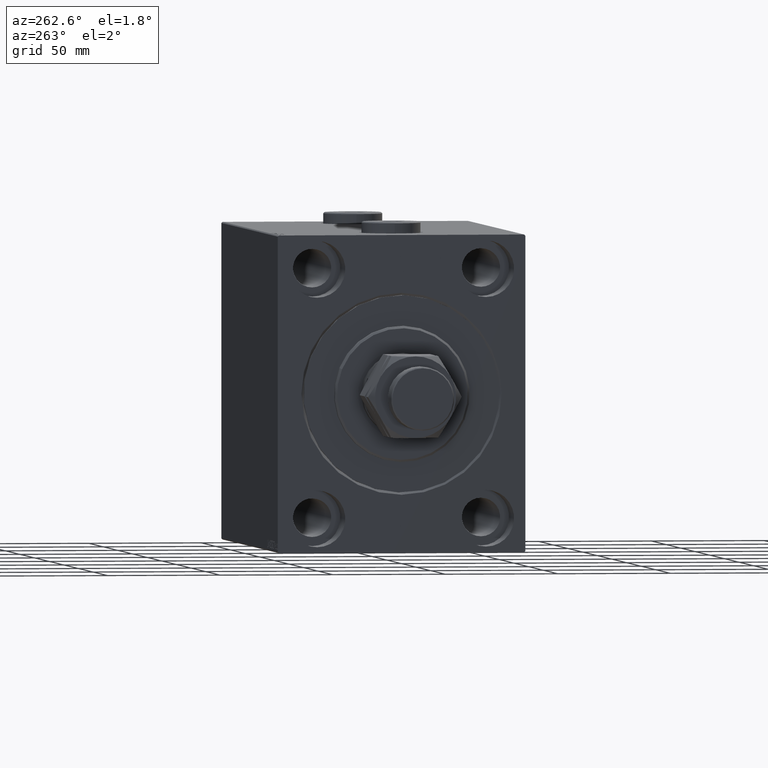
[diagram: clean part render]
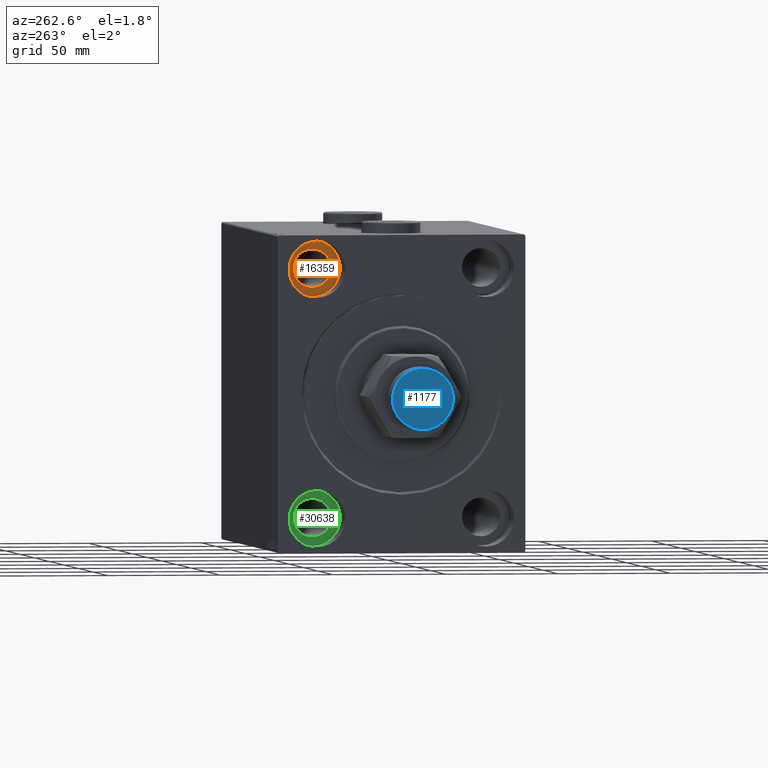
[diagram: same view with three faces highlighted in distinct colors, each labeled with its STEP entity id]
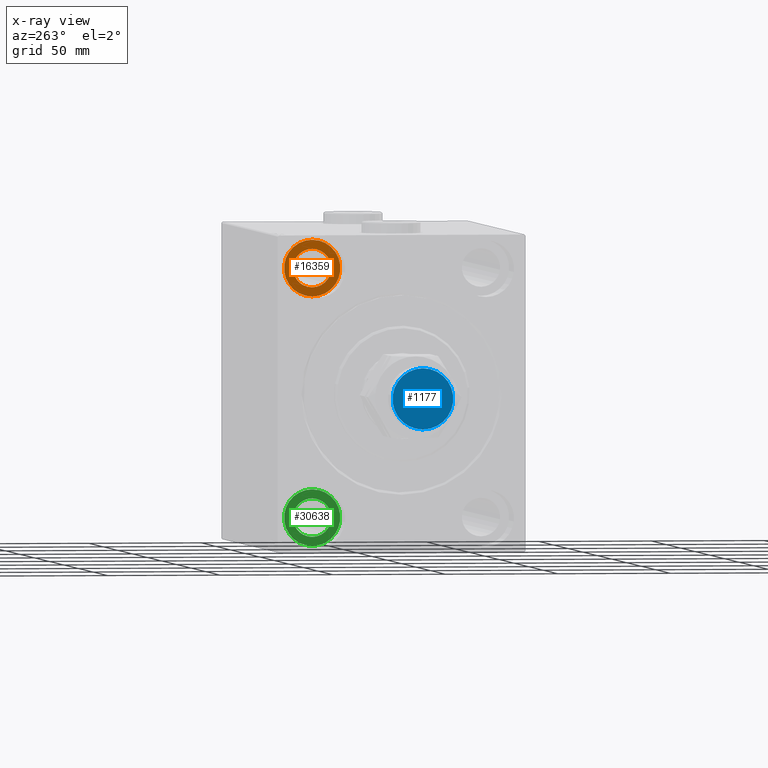
[diagram: x-ray of the same camera — body ghosted, the three highlighted faces saturated]
A machine part, auxiliary view with three faces highlighted in distinct colors.
The next image is the same camera in x-ray (body ghosted, the three faces saturated) — at least one of them is partly hidden behind the body in this view.
Their STEP definitions:

[orange] entity #16359 — the highlighted planar face has unit normal (-1, 0, 0).
#693 = ORIENTED_EDGE ( 'NONE', *, *, #28513, .T. ) ;
#740 = EDGE_CURVE ( 'NONE', #25938, #12405, #42441, .T. ) ;
#2839 = CARTESIAN_POINT ( 'NONE',  ( 17.00000000000001421, 37.50000000000000711, 63.50000000000000000 ) ) ;
#5998 = DIRECTION ( 'NONE',  ( 0.000000000000000000, 0.000000000000000000, 1.000000000000000000 ) ) ;
#6704 = DIRECTION ( 'NONE',  ( 0.000000000000000000, 0.000000000000000000, 1.000000000000000000 ) ) ;
#7000 = AXIS2_PLACEMENT_3D ( 'NONE', #28469, #10396, #45856 ) ;
#10268 = FACE_OUTER_BOUND ( 'NONE', #42018, .T. ) ;
#10396 = DIRECTION ( 'NONE',  ( -1.000000000000000000, 0.000000000000000000, 0.000000000000000000 ) ) ;
#12269 = AXIS2_PLACEMENT_3D ( 'NONE', #34643, #23234, #42040 ) ;
#12405 = VERTEX_POINT ( 'NONE', #30133 ) ;
#13001 = VERTEX_POINT ( 'NONE', #44959 ) ;
#13147 = FACE_BOUND ( 'NONE', #35558, .T. ) ;
#16359 = ADVANCED_FACE ( 'NONE', ( #13147, #10268 ), #28344, .T. ) ;
#16808 = CARTESIAN_POINT ( 'NONE',  ( 17.00000000000000000, 37.50000000000000711, 42.50000000000000711 ) ) ;
#16976 = ORIENTED_EDGE ( 'NONE', *, *, #44388, .F. ) ;
#23234 = DIRECTION ( 'NONE',  ( -1.000000000000000000, 0.000000000000000000, 0.000000000000000000 ) ) ;
#23598 = VERTEX_POINT ( 'NONE', #16808 ) ;
#24787 = ORIENTED_EDGE ( 'NONE', *, *, #740, .F. ) ;
#24883 = AXIS2_PLACEMENT_3D ( 'NONE', #42867, #43804, #6704 ) ;
#25937 = CIRCLE ( 'NONE', #12269, 12.49999999999999645 ) ;
#25938 = VERTEX_POINT ( 'NONE', #2839 ) ;
#28099 = DIRECTION ( 'NONE',  ( -1.000000000000000000, 0.000000000000000000, 0.000000000000000000 ) ) ;
#28344 = PLANE ( 'NONE',  #38261 ) ;
#28469 = CARTESIAN_POINT ( 'NONE',  ( 17.00000000000001421, 37.50000000000000711, 55.00000000000000711 ) ) ;
#28513 = EDGE_CURVE ( 'NONE', #13001, #23598, #32489, .T. ) ;
#30133 = CARTESIAN_POINT ( 'NONE',  ( 17.00000000000001421, 37.50000000000000711, 46.50000000000001421 ) ) ;
#32489 = CIRCLE ( 'NONE', #24883, 12.49999999999999645 ) ;
#34643 = CARTESIAN_POINT ( 'NONE',  ( 17.00000000000000000, 37.50000000000000711, 55.00000000000000711 ) ) ;
#35558 = EDGE_LOOP ( 'NONE', ( #24787, #16976 ) ) ;
#37063 = DIRECTION ( 'NONE',  ( -1.000000000000000000, 0.000000000000000000, 0.000000000000000000 ) ) ;
#38261 = AXIS2_PLACEMENT_3D ( 'NONE', #38590, #28099, #5998 ) ;
#38382 = ORIENTED_EDGE ( 'NONE', *, *, #41353, .T. ) ;
#38590 = CARTESIAN_POINT ( 'NONE',  ( 17.00000000000000000, 0.000000000000000000, 0.000000000000000000 ) ) ;
#39699 = DIRECTION ( 'NONE',  ( 0.000000000000000000, 0.000000000000000000, 1.000000000000000000 ) ) ;
#40459 = CIRCLE ( 'NONE', #7000, 8.499999999999992895 ) ;
#41353 = EDGE_CURVE ( 'NONE', #23598, #13001, #25937, .T. ) ;
#42018 = EDGE_LOOP ( 'NONE', ( #693, #38382 ) ) ;
#42040 = DIRECTION ( 'NONE',  ( 0.000000000000000000, 0.000000000000000000, 1.000000000000000000 ) ) ;
#42441 = CIRCLE ( 'NONE', #43976, 8.499999999999992895 ) ;
#42867 = CARTESIAN_POINT ( 'NONE',  ( 17.00000000000000000, 37.50000000000000711, 55.00000000000000711 ) ) ;
#43804 = DIRECTION ( 'NONE',  ( -1.000000000000000000, 0.000000000000000000, 0.000000000000000000 ) ) ;
#43976 = AXIS2_PLACEMENT_3D ( 'NONE', #47058, #37063, #39699 ) ;
#44388 = EDGE_CURVE ( 'NONE', #12405, #25938, #40459, .T. ) ;
#44959 = CARTESIAN_POINT ( 'NONE',  ( 17.00000000000000000, 37.50000000000000711, 67.50000000000000000 ) ) ;
#45856 = DIRECTION ( 'NONE',  ( 0.000000000000000000, 0.000000000000000000, 1.000000000000000000 ) ) ;
#47058 = CARTESIAN_POINT ( 'NONE',  ( 17.00000000000001421, 37.50000000000000711, 55.00000000000000711 ) ) ;

[blue] entity #1177 — the highlighted planar face has unit normal (-1, 0, 0).
#384 = DIRECTION ( 'NONE',  ( 0.000000000000000000, 0.000000000000000000, 1.000000000000000000 ) ) ;
#1177 = ADVANCED_FACE ( 'NONE', ( #14659 ), #7505, .T. ) ;
#2274 = AXIS2_PLACEMENT_3D ( 'NONE', #4989, #27082, #27561 ) ;
#3999 = DIRECTION ( 'NONE',  ( 0.000000000000000000, 0.000000000000000000, 1.000000000000000000 ) ) ;
#4989 = CARTESIAN_POINT ( 'NONE',  ( 0.000000000000000000, 0.000000000000000000, 59.00000000000000000 ) ) ;
#6778 = EDGE_LOOP ( 'NONE', ( #45226, #14557 ) ) ;
#7505 = PLANE ( 'NONE',  #20378 ) ;
#14443 = CIRCLE ( 'NONE', #2274, 13.50000000000001954 ) ;
#14557 = ORIENTED_EDGE ( 'NONE', *, *, #22695, .T. ) ;
#14659 = FACE_OUTER_BOUND ( 'NONE', #6778, .T. ) ;
#19512 = VERTEX_POINT ( 'NONE', #23377 ) ;
#20378 = AXIS2_PLACEMENT_3D ( 'NONE', #25344, #384, #40340 ) ;
#20950 = AXIS2_PLACEMENT_3D ( 'NONE', #40151, #3999, #43950 ) ;
#22695 = EDGE_CURVE ( 'NONE', #19512, #46417, #36186, .T. ) ;
#23377 = CARTESIAN_POINT ( 'NONE',  ( 13.50000000000001954, 1.683889348827612034E-15, 59.00000000000000000 ) ) ;
#25344 = CARTESIAN_POINT ( 'NONE',  ( 0.000000000000000000, 0.000000000000000000, 59.00000000000000000 ) ) ;
#27082 = DIRECTION ( 'NONE',  ( 0.000000000000000000, 0.000000000000000000, 1.000000000000000000 ) ) ;
#27561 = DIRECTION ( 'NONE',  ( 1.000000000000000000, 0.000000000000000000, 0.000000000000000000 ) ) ;
#33654 = EDGE_CURVE ( 'NONE', #46417, #19512, #14443, .T. ) ;
#36186 = CIRCLE ( 'NONE', #20950, 13.50000000000001954 ) ;
#40151 = CARTESIAN_POINT ( 'NONE',  ( 0.000000000000000000, 0.000000000000000000, 59.00000000000000000 ) ) ;
#40340 = DIRECTION ( 'NONE',  ( 1.000000000000000000, 0.000000000000000000, -0.000000000000000000 ) ) ;
#43950 = DIRECTION ( 'NONE',  ( 1.000000000000000000, 0.000000000000000000, 0.000000000000000000 ) ) ;
#45226 = ORIENTED_EDGE ( 'NONE', *, *, #33654, .T. ) ;
#45802 = CARTESIAN_POINT ( 'NONE',  ( -13.50000000000001954, 0.000000000000000000, 59.00000000000000000 ) ) ;
#46417 = VERTEX_POINT ( 'NONE', #45802 ) ;

[green] entity #30638 — the highlighted planar face has unit normal (-1, 0, 0).
#472 = CARTESIAN_POINT ( 'NONE',  ( 17.00000000000001421, 37.49999999999997868, -46.50000000000000000 ) ) ;
#3255 = DIRECTION ( 'NONE',  ( -1.000000000000000000, 0.000000000000000000, 0.000000000000000000 ) ) ;
#3322 = CARTESIAN_POINT ( 'NONE',  ( 17.00000000000000000, 37.49999999999997868, -54.99999999999999289 ) ) ;
#4721 = CIRCLE ( 'NONE', #16866, 12.49999999999999645 ) ;
#6730 = AXIS2_PLACEMENT_3D ( 'NONE', #46981, #14401, #21752 ) ;
#7549 = VERTEX_POINT ( 'NONE', #46311 ) ;
#8899 = ORIENTED_EDGE ( 'NONE', *, *, #13909, .T. ) ;
#9283 = EDGE_CURVE ( 'NONE', #32556, #37981, #18356, .T. ) ;
#10683 = DIRECTION ( 'NONE',  ( 0.000000000000000000, 0.000000000000000000, 1.000000000000000000 ) ) ;
#10861 = AXIS2_PLACEMENT_3D ( 'NONE', #24875, #3255, #39169 ) ;
#11187 = CARTESIAN_POINT ( 'NONE',  ( 17.00000000000001421, 37.49999999999997868, -63.49999999999998579 ) ) ;
#13493 = AXIS2_PLACEMENT_3D ( 'NONE', #37336, #26368, #34209 ) ;
#13909 = EDGE_CURVE ( 'NONE', #34320, #7549, #4721, .T. ) ;
#14401 = DIRECTION ( 'NONE',  ( -1.000000000000000000, 0.000000000000000000, 0.000000000000000000 ) ) ;
#14871 = FACE_OUTER_BOUND ( 'NONE', #23995, .T. ) ;
#15783 = EDGE_CURVE ( 'NONE', #7549, #34320, #32883, .T. ) ;
#16235 = ORIENTED_EDGE ( 'NONE', *, *, #26995, .F. ) ;
#16615 = CARTESIAN_POINT ( 'NONE',  ( 17.00000000000001421, 37.49999999999997868, -54.99999999999999289 ) ) ;
#16866 = AXIS2_PLACEMENT_3D ( 'NONE', #3322, #28747, #10683 ) ;
#18044 = CIRCLE ( 'NONE', #13493, 8.499999999999992895 ) ;
#18356 = CIRCLE ( 'NONE', #24417, 8.499999999999992895 ) ;
#18439 = CARTESIAN_POINT ( 'NONE',  ( 17.00000000000000000, 37.49999999999997868, -67.49999999999998579 ) ) ;
#19297 = ORIENTED_EDGE ( 'NONE', *, *, #15783, .T. ) ;
#20298 = EDGE_LOOP ( 'NONE', ( #23510, #16235 ) ) ;
#21752 = DIRECTION ( 'NONE',  ( 0.000000000000000000, 0.000000000000000000, 1.000000000000000000 ) ) ;
#23269 = DIRECTION ( 'NONE',  ( 0.000000000000000000, 0.000000000000000000, 1.000000000000000000 ) ) ;
#23510 = ORIENTED_EDGE ( 'NONE', *, *, #9283, .F. ) ;
#23995 = EDGE_LOOP ( 'NONE', ( #19297, #8899 ) ) ;
#24417 = AXIS2_PLACEMENT_3D ( 'NONE', #16615, #42080, #23269 ) ;
#24875 = CARTESIAN_POINT ( 'NONE',  ( 17.00000000000000000, 37.49999999999997868, -54.99999999999999289 ) ) ;
#26368 = DIRECTION ( 'NONE',  ( -1.000000000000000000, 0.000000000000000000, 0.000000000000000000 ) ) ;
#26995 = EDGE_CURVE ( 'NONE', #37981, #32556, #18044, .T. ) ;
#28747 = DIRECTION ( 'NONE',  ( -1.000000000000000000, 0.000000000000000000, 0.000000000000000000 ) ) ;
#29598 = FACE_BOUND ( 'NONE', #20298, .T. ) ;
#30638 = ADVANCED_FACE ( 'NONE', ( #29598, #14871 ), #33159, .T. ) ;
#32556 = VERTEX_POINT ( 'NONE', #472 ) ;
#32883 = CIRCLE ( 'NONE', #10861, 12.49999999999999645 ) ;
#33159 = PLANE ( 'NONE',  #6730 ) ;
#34209 = DIRECTION ( 'NONE',  ( 0.000000000000000000, 0.000000000000000000, 1.000000000000000000 ) ) ;
#34320 = VERTEX_POINT ( 'NONE', #18439 ) ;
#37336 = CARTESIAN_POINT ( 'NONE',  ( 17.00000000000001421, 37.49999999999997868, -54.99999999999999289 ) ) ;
#37981 = VERTEX_POINT ( 'NONE', #11187 ) ;
#39169 = DIRECTION ( 'NONE',  ( 0.000000000000000000, 0.000000000000000000, 1.000000000000000000 ) ) ;
#42080 = DIRECTION ( 'NONE',  ( -1.000000000000000000, 0.000000000000000000, 0.000000000000000000 ) ) ;
#46311 = CARTESIAN_POINT ( 'NONE',  ( 17.00000000000000000, 37.49999999999997868, -42.49999999999999289 ) ) ;
#46981 = CARTESIAN_POINT ( 'NONE',  ( 17.00000000000000000, 37.49999999999997868, -54.99999999999999289 ) ) ;